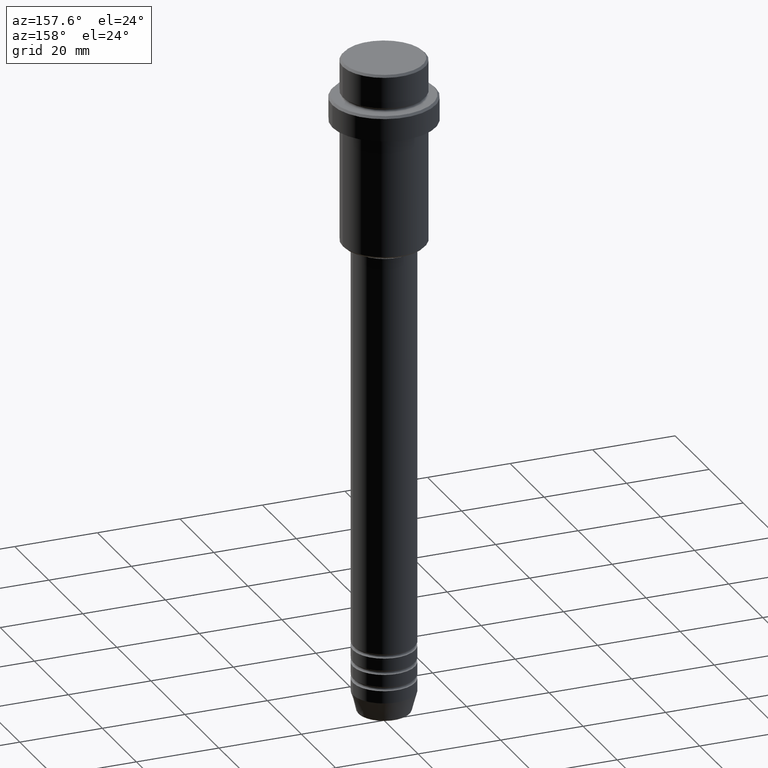
[diagram: clean part render]
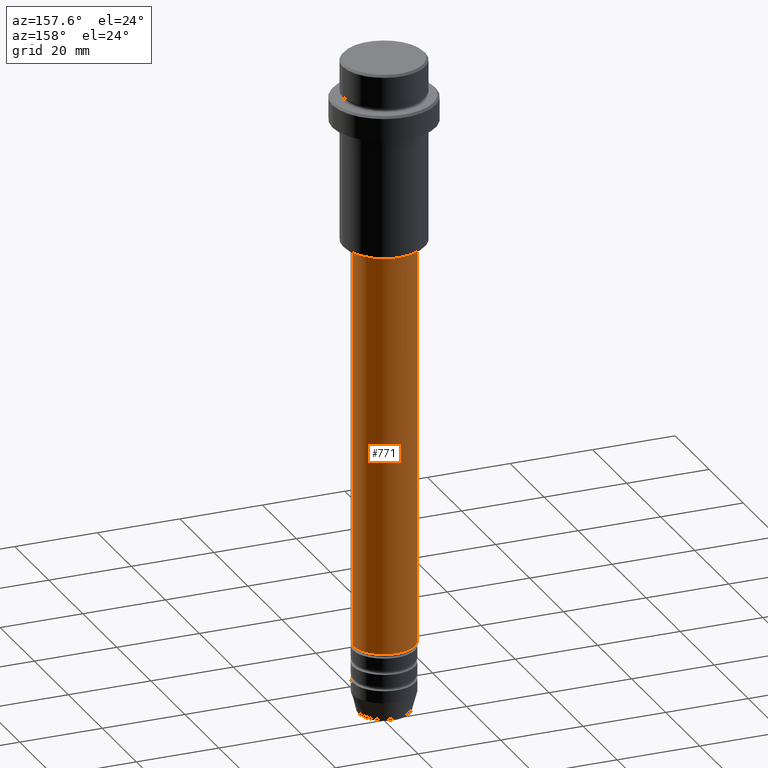
[diagram: same view with one face highlighted and labeled with its STEP entity id]
A machine part, auxiliary view. The second image highlights one B-rep face of the part: STEP entity #771.
In plain terms, the highlighted cylindrical surface (edge-blend (fillet) strip) has radius 7.5 mm, axis along (-0, -0, 1).
Its self-contained STEP definition (entity closure, byte-faithful):
#36 = AXIS2_PLACEMENT_3D ( 'NONE', #839, #691, #170 ) ;
#60 = VERTEX_POINT ( 'NONE', #1263 ) ;
#90 = DIRECTION ( 'NONE',  ( 1.000000000000000000, 0.000000000000000000, 0.000000000000000000 ) ) ;
#170 = DIRECTION ( 'NONE',  ( 1.000000000000000000, 0.000000000000000000, 0.000000000000000000 ) ) ;
#190 = DIRECTION ( 'NONE',  ( -0.000000000000000000, -0.000000000000000000, 1.000000000000000000 ) ) ;
#205 = DIRECTION ( 'NONE',  ( -0.000000000000000000, -0.000000000000000000, 1.000000000000000000 ) ) ;
#212 = CARTESIAN_POINT ( 'NONE',  ( 7.500000000000000000, 0.000000000000000000, -142.9999999999998863 ) ) ;
#278 = EDGE_CURVE ( 'NONE', #1221, #60, #427, .T. ) ;
#414 = CYLINDRICAL_SURFACE ( 'NONE', #36, 7.500000000000000000 ) ;
#427 = LINE ( 'NONE', #1416, #961 ) ;
#432 = VERTEX_POINT ( 'NONE', #1241 ) ;
#474 = LINE ( 'NONE', #1222, #1333 ) ;
#519 = DIRECTION ( 'NONE',  ( 1.000000000000000000, 0.000000000000000000, 0.000000000000000000 ) ) ;
#681 = AXIS2_PLACEMENT_3D ( 'NONE', #1159, #205, #519 ) ;
#687 = ORIENTED_EDGE ( 'NONE', *, *, #278, .F. ) ;
#691 = DIRECTION ( 'NONE',  ( -0.000000000000000000, -0.000000000000000000, 1.000000000000000000 ) ) ;
#694 = ORIENTED_EDGE ( 'NONE', *, *, #1084, .T. ) ;
#741 = CARTESIAN_POINT ( 'NONE',  ( -7.500000000000000000, 9.184850993605147944E-16, -46.00000000000000711 ) ) ;
#771 = ADVANCED_FACE ( 'NONE', ( #1395 ), #414, .T. ) ;
#839 = CARTESIAN_POINT ( 'NONE',  ( 0.000000000000000000, 0.000000000000000000, 0.000000000000000000 ) ) ;
#893 = CIRCLE ( 'NONE', #1186, 7.500000000000000000 ) ;
#925 = ORIENTED_EDGE ( 'NONE', *, *, #950, .T. ) ;
#950 = EDGE_CURVE ( 'NONE', #1221, #432, #1007, .T. ) ;
#961 = VECTOR ( 'NONE', #971, 1000.000000000000000 ) ;
#971 = DIRECTION ( 'NONE',  ( -0.000000000000000000, -0.000000000000000000, 1.000000000000000000 ) ) ;
#1007 = CIRCLE ( 'NONE', #681, 7.500000000000000000 ) ;
#1014 = EDGE_CURVE ( 'NONE', #60, #1017, #893, .T. ) ;
#1017 = VERTEX_POINT ( 'NONE', #741 ) ;
#1063 = DIRECTION ( 'NONE',  ( -0.000000000000000000, -0.000000000000000000, 1.000000000000000000 ) ) ;
#1084 = EDGE_CURVE ( 'NONE', #432, #1017, #474, .T. ) ;
#1090 = ORIENTED_EDGE ( 'NONE', *, *, #1014, .F. ) ;
#1159 = CARTESIAN_POINT ( 'NONE',  ( 0.000000000000000000, 0.000000000000000000, -142.9999999999998863 ) ) ;
#1186 = AXIS2_PLACEMENT_3D ( 'NONE', #1288, #1063, #90 ) ;
#1212 = EDGE_LOOP ( 'NONE', ( #925, #694, #1090, #687 ) ) ;
#1221 = VERTEX_POINT ( 'NONE', #212 ) ;
#1222 = CARTESIAN_POINT ( 'NONE',  ( -7.500000000000000000, 9.184850993605147944E-16, 0.000000000000000000 ) ) ;
#1241 = CARTESIAN_POINT ( 'NONE',  ( -7.500000000000000000, 9.184850993605147944E-16, -142.9999999999998863 ) ) ;
#1263 = CARTESIAN_POINT ( 'NONE',  ( 7.500000000000000000, 0.000000000000000000, -46.00000000000000711 ) ) ;
#1288 = CARTESIAN_POINT ( 'NONE',  ( 0.000000000000000000, 0.000000000000000000, -46.00000000000000711 ) ) ;
#1333 = VECTOR ( 'NONE', #190, 1000.000000000000000 ) ;
#1395 = FACE_OUTER_BOUND ( 'NONE', #1212, .T. ) ;
#1416 = CARTESIAN_POINT ( 'NONE',  ( 7.500000000000000000, 0.000000000000000000, 0.000000000000000000 ) ) ;